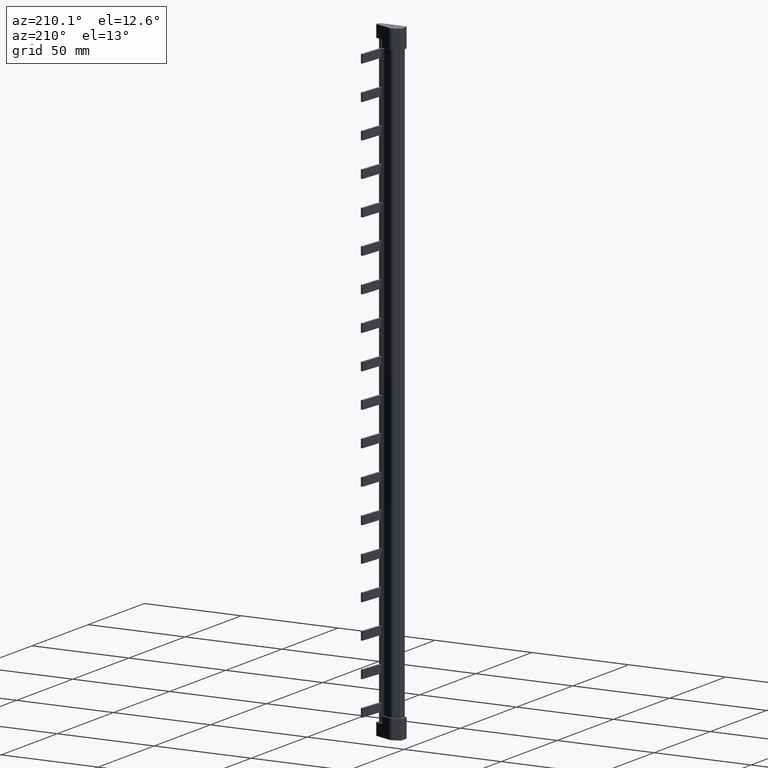
[diagram: clean part render]
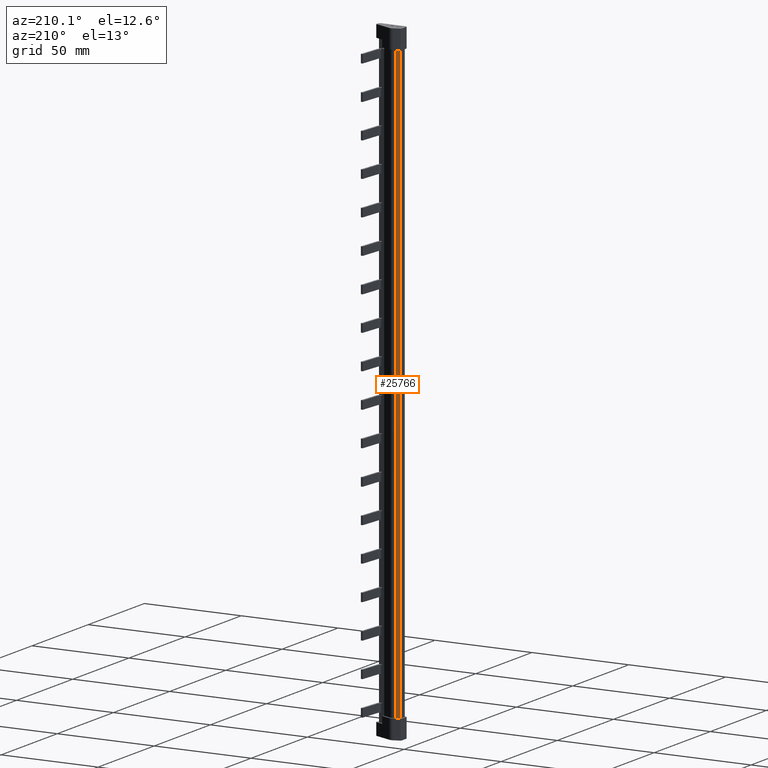
[diagram: same view with one face highlighted and labeled with its STEP entity id]
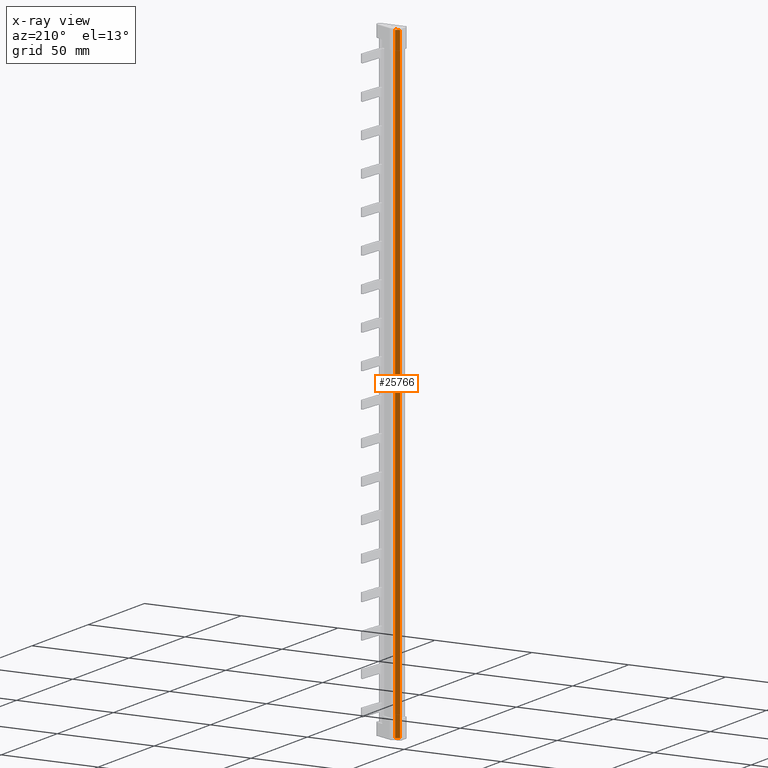
[diagram: x-ray of the same camera — body ghosted, the highlighted face saturated]
A machine part, auxiliary view. The second image highlights one B-rep face of the part: STEP entity #25766.
The next image is the same camera in x-ray: the body ghosted, the highlighted face saturated — about 0% of this face is hidden behind the body in this view.
In plain terms, the highlighted planar face has unit normal (-0.3358, 0.9419, 0).
Its self-contained STEP definition (entity closure, byte-faithful):
#3774 = CARTESIAN_POINT ( 'NONE',  ( -0.2554380165529479000, 4.045338471695521900, 219.0000000000000000 ) ) ;
#3829 = CARTESIAN_POINT ( 'NONE',  ( 1.856511742230762400, 4.798317562778321700, 209.9000000000000100 ) ) ;
#3856 = CARTESIAN_POINT ( 'NONE',  ( 1.856511742181356600, 4.798317562760717100, 219.0000000000000000 ) ) ;
#4590 = CARTESIAN_POINT ( 'NONE',  ( 1.856511742226315800, 4.798317562776746000, -104.9999999999999900 ) ) ;
#4612 = CARTESIAN_POINT ( 'NONE',  ( 1.856511742230768200, 4.798317562778304800, -95.90000000000006300 ) ) ;
#4630 = CARTESIAN_POINT ( 'NONE',  ( -0.2554380165529471200, 4.045338471695519200, -104.9999999999999600 ) ) ;
#7038 = DIRECTION ( 'NONE',  ( -0.9419238204339639400, -0.3358266167222092600, 0.0000000000000000000 ) ) ;
#7048 = PLANE ( 'NONE',  #26542 ) ;
#7049 = CARTESIAN_POINT ( 'NONE',  ( 1.856511742230759100, 4.798317562778330500, 199.0000000000000000 ) ) ;
#7061 = FACE_OUTER_BOUND ( 'NONE', #14031, .T. ) ;
#7081 = DIRECTION ( 'NONE',  ( -0.3358266167222092600, 0.9419238204339639400, 0.0000000000000000000 ) ) ;
#14031 = EDGE_LOOP ( 'NONE', ( #23798, #23792, #23793, #23781, #23768, #23835 ) ) ;
#21624 = LINE ( 'NONE', #21636, #26377 ) ;
#21636 = CARTESIAN_POINT ( 'NONE',  ( 1.856511742230758900, 4.798317562778330500, 199.0000000000000000 ) ) ;
#21640 = LINE ( 'NONE', #21645, #26391 ) ;
#21645 = CARTESIAN_POINT ( 'NONE',  ( 1.856511742230759100, 4.798317562778330500, -104.9999999999999900 ) ) ;
#21648 = DIRECTION ( 'NONE',  ( -0.0000000000000000000, -0.0000000000000000000, -1.000000000000000000 ) ) ;
#21649 = DIRECTION ( 'NONE',  ( -0.9419238204339639400, -0.3358266167222092600, 0.0000000000000000000 ) ) ;
#21855 = CARTESIAN_POINT ( 'NONE',  ( -0.2554380165529275300, 4.045338471695533400, 219.0000000000000000 ) ) ;
#21860 = DIRECTION ( 'NONE',  ( -0.0000000000000000000, -0.0000000000000000000, -1.000000000000000000 ) ) ;
#21866 = LINE ( 'NONE', #21855, #26436 ) ;
#21936 = LINE ( 'NONE', #21944, #26419 ) ;
#21944 = CARTESIAN_POINT ( 'NONE',  ( 1.856511742230777500, 4.798317562778278100, -99.50000000000002800 ) ) ;
#21949 = DIRECTION ( 'NONE',  ( 4.307407246271474200E-027, -1.216194766109910600E-026, -1.000000000000000000 ) ) ;
#21988 = CARTESIAN_POINT ( 'NONE',  ( 1.856511742230778900, 4.798317562778278100, 213.5000000000000600 ) ) ;
#21990 = DIRECTION ( 'NONE',  ( -4.307407246271474200E-027, 1.216194766109910600E-026, -1.000000000000000000 ) ) ;
#22011 = LINE ( 'NONE', #22019, #26510 ) ;
#22018 = LINE ( 'NONE', #21988, #26489 ) ;
#22019 = CARTESIAN_POINT ( 'NONE',  ( 1.856511742230759100, 4.798317562778330500, 219.0000000000000000 ) ) ;
#22024 = DIRECTION ( 'NONE',  ( 0.9419238204339639400, 0.3358266167222092600, -0.0000000000000000000 ) ) ;
#23768 = ORIENTED_EDGE ( 'NONE', *, *, #25655, .T. ) ;
#23781 = ORIENTED_EDGE ( 'NONE', *, *, #25615, .F. ) ;
#23792 = ORIENTED_EDGE ( 'NONE', *, *, #25641, .T. ) ;
#23793 = ORIENTED_EDGE ( 'NONE', *, *, #25538, .T. ) ;
#23798 = ORIENTED_EDGE ( 'NONE', *, *, #25537, .T. ) ;
#23835 = ORIENTED_EDGE ( 'NONE', *, *, #25662, .T. ) ;
#25537 = EDGE_CURVE ( 'NONE', #27468, #28779, #21624, .T. ) ;
#25538 = EDGE_CURVE ( 'NONE', #28793, #28761, #21640, .T. ) ;
#25615 = EDGE_CURVE ( 'NONE', #27438, #28761, #21866, .T. ) ;
#25641 = EDGE_CURVE ( 'NONE', #28779, #28793, #21936, .T. ) ;
#25655 = EDGE_CURVE ( 'NONE', #27438, #27474, #22011, .T. ) ;
#25662 = EDGE_CURVE ( 'NONE', #27474, #27468, #22018, .T. ) ;
#25766 = ADVANCED_FACE ( 'NONE', ( #7061 ), #7048, .T. ) ;
#26377 = VECTOR ( 'NONE', #21648, 1000.000000000000000 ) ;
#26391 = VECTOR ( 'NONE', #21649, 1000.000000000000000 ) ;
#26419 = VECTOR ( 'NONE', #21949, 1000.000000000000000 ) ;
#26436 = VECTOR ( 'NONE', #21860, 1000.000000000000000 ) ;
#26489 = VECTOR ( 'NONE', #21990, 1000.000000000000000 ) ;
#26510 = VECTOR ( 'NONE', #22024, 1000.000000000000000 ) ;
#26542 = AXIS2_PLACEMENT_3D ( 'NONE', #7049, #7081, #7038 ) ;
#27438 = VERTEX_POINT ( 'NONE', #3774 ) ;
#27468 = VERTEX_POINT ( 'NONE', #3829 ) ;
#27474 = VERTEX_POINT ( 'NONE', #3856 ) ;
#28761 = VERTEX_POINT ( 'NONE', #4630 ) ;
#28779 = VERTEX_POINT ( 'NONE', #4612 ) ;
#28793 = VERTEX_POINT ( 'NONE', #4590 ) ;